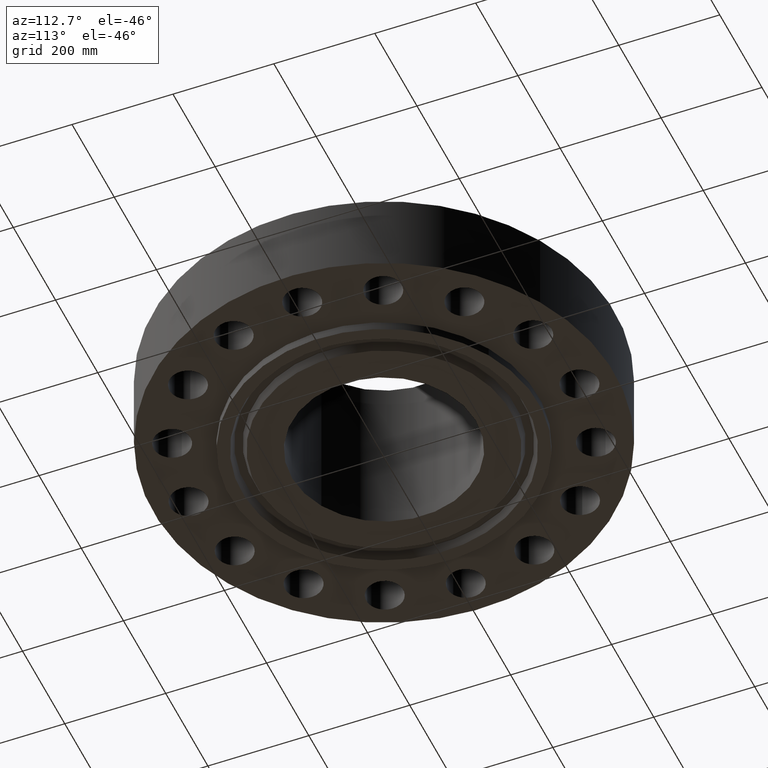
[diagram: clean part render]
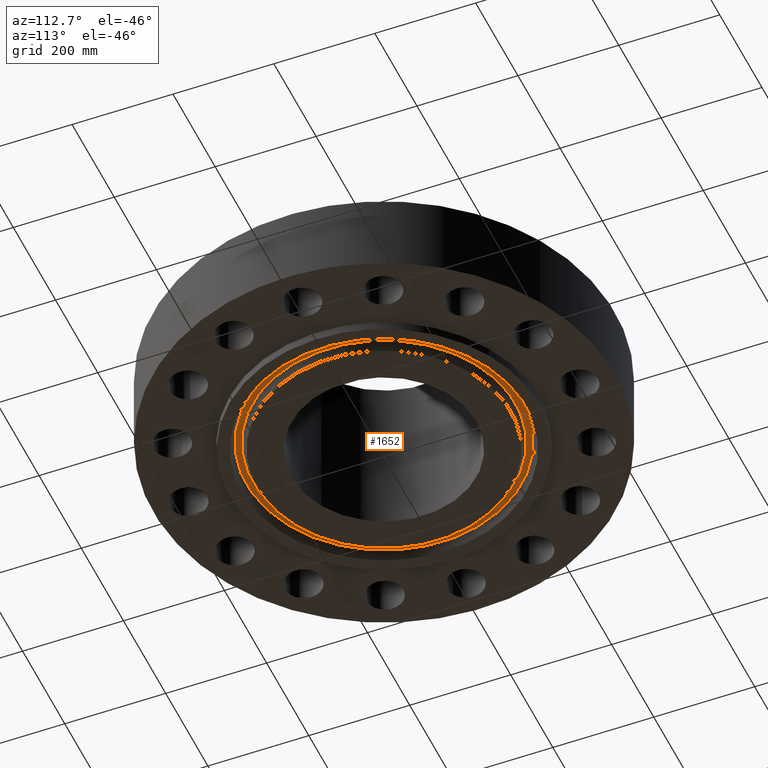
[diagram: same view with one face highlighted and labeled with its STEP entity id]
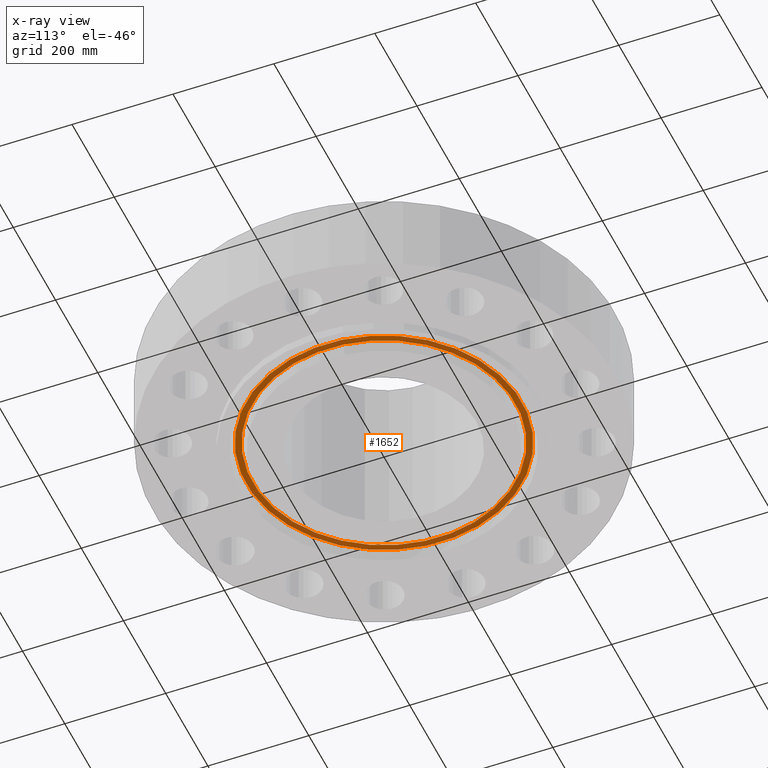
[diagram: x-ray of the same camera — body ghosted, the highlighted face saturated]
A machine part, auxiliary view. The second image highlights one B-rep face of the part: STEP entity #1652.
The next image is the same camera in x-ray: the body ghosted, the highlighted face saturated — about 0% of this face is hidden behind the body in this view.
In plain terms, the highlighted planar face has unit normal (0, 0, -1).
Its self-contained STEP definition (entity closure, byte-faithful):
#570=AXIS2_PLACEMENT_3D('Plane Axis2P3D',#567,#568,#569) ;
#1574=AXIS2_PLACEMENT_3D('Circle Axis2P3D',#1572,#1573,$) ;
#1620=AXIS2_PLACEMENT_3D('Circle Axis2P3D',#1618,#1619,$) ;
#1636=AXIS2_PLACEMENT_3D('Circle Axis2P3D',#1634,#1635,$) ;
#1645=AXIS2_PLACEMENT_3D('Circle Axis2P3D',#1643,#1644,$) ;
#567=CARTESIAN_POINT('Axis2P3D Location',(0.,12.0625,0.)) ;
#1569=CARTESIAN_POINT('Vertex',(-5.14890759182,9.42501212705,-7.69288395016E-016)) ;
#1572=CARTESIAN_POINT('Axis2P3D Location',(0.,0.,-7.69288395016E-016)) ;
#1576=CARTESIAN_POINT('Vertex',(5.14890759182,-9.42501212705,-7.69288395016E-016)) ;
#1618=CARTESIAN_POINT('Axis2P3D Location',(0.,0.,-7.69288395016E-016)) ;
#1634=CARTESIAN_POINT('Axis2P3D Location',(0.,0.,0.)) ;
#1638=CARTESIAN_POINT('Vertex',(4.91902871891,-9.00422167272,5.07030987624E-016)) ;
#1640=CARTESIAN_POINT('Vertex',(-4.91902871891,9.00422167272,5.07030987624E-016)) ;
#1643=CARTESIAN_POINT('Axis2P3D Location',(0.,0.,0.)) ;
#568=DIRECTION('Axis2P3D Direction',(0.,0.,-0.0393700787402)) ;
#569=DIRECTION('Axis2P3D XDirection',(0.0393700787402,0.,0.)) ;
#1573=DIRECTION('Axis2P3D Direction',(0.,0.,0.0393700787402)) ;
#1619=DIRECTION('Axis2P3D Direction',(0.,0.,0.0393700787402)) ;
#1635=DIRECTION('Axis2P3D Direction',(0.,0.,-0.0393700787402)) ;
#1644=DIRECTION('Axis2P3D Direction',(0.,0.,-0.0393700787402)) ;
#1631=ORIENTED_EDGE('',*,*,#1578,.F.) ;
#1632=ORIENTED_EDGE('',*,*,#1622,.F.) ;
#1649=ORIENTED_EDGE('',*,*,#1642,.T.) ;
#1650=ORIENTED_EDGE('',*,*,#1647,.T.) ;
#1651=FACE_BOUND('',#1648,.T.) ;
#1652=ADVANCED_FACE('PartBody',(#1633,#1651),#571,.T.) ;
#1575=CIRCLE('generated circle',#1574,10.7397440837) ;
#1621=CIRCLE('generated circle',#1620,10.7397440837) ;
#1637=CIRCLE('generated circle',#1636,10.2602559163) ;
#1646=CIRCLE('generated circle',#1645,10.2602559163) ;
#1578=EDGE_CURVE('',#1570,#1577,#1575,.T.) ;
#1622=EDGE_CURVE('',#1577,#1570,#1621,.T.) ;
#1642=EDGE_CURVE('',#1639,#1641,#1637,.F.) ;
#1647=EDGE_CURVE('',#1641,#1639,#1646,.F.) ;
#1630=EDGE_LOOP('',(#1631,#1632)) ;
#1648=EDGE_LOOP('',(#1649,#1650)) ;
#1633=FACE_OUTER_BOUND('',#1630,.T.) ;
#571=PLANE('',#570) ;
#1570=VERTEX_POINT('',#1569) ;
#1577=VERTEX_POINT('',#1576) ;
#1639=VERTEX_POINT('',#1638) ;
#1641=VERTEX_POINT('',#1640) ;